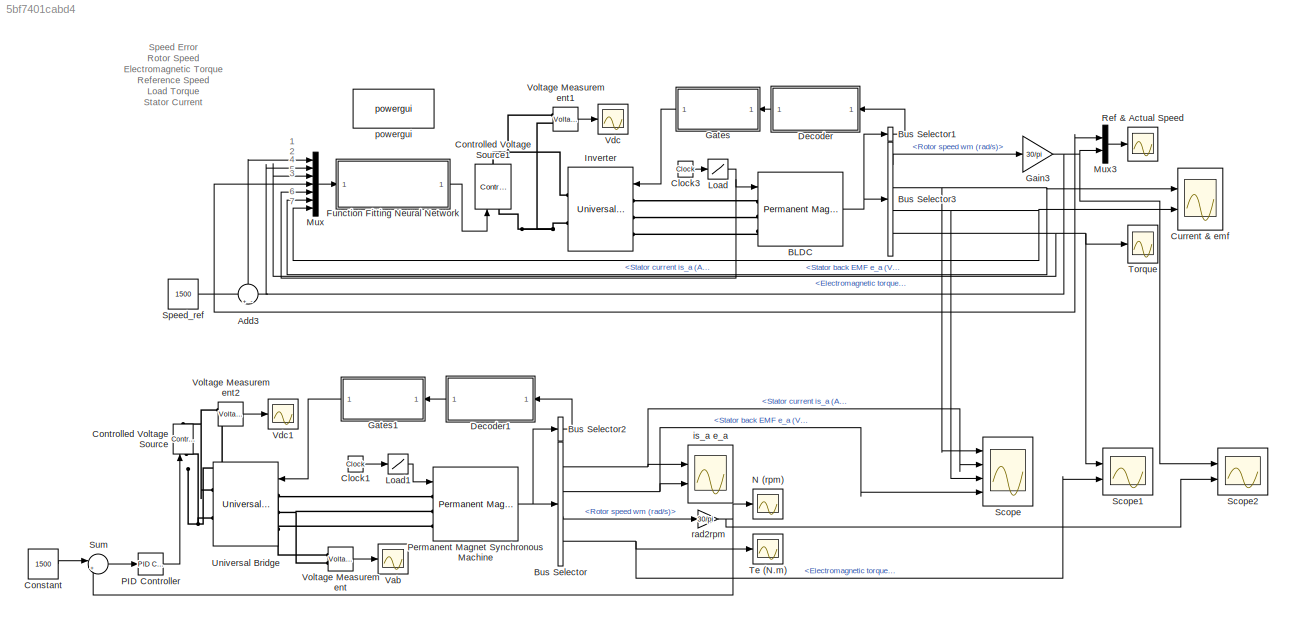
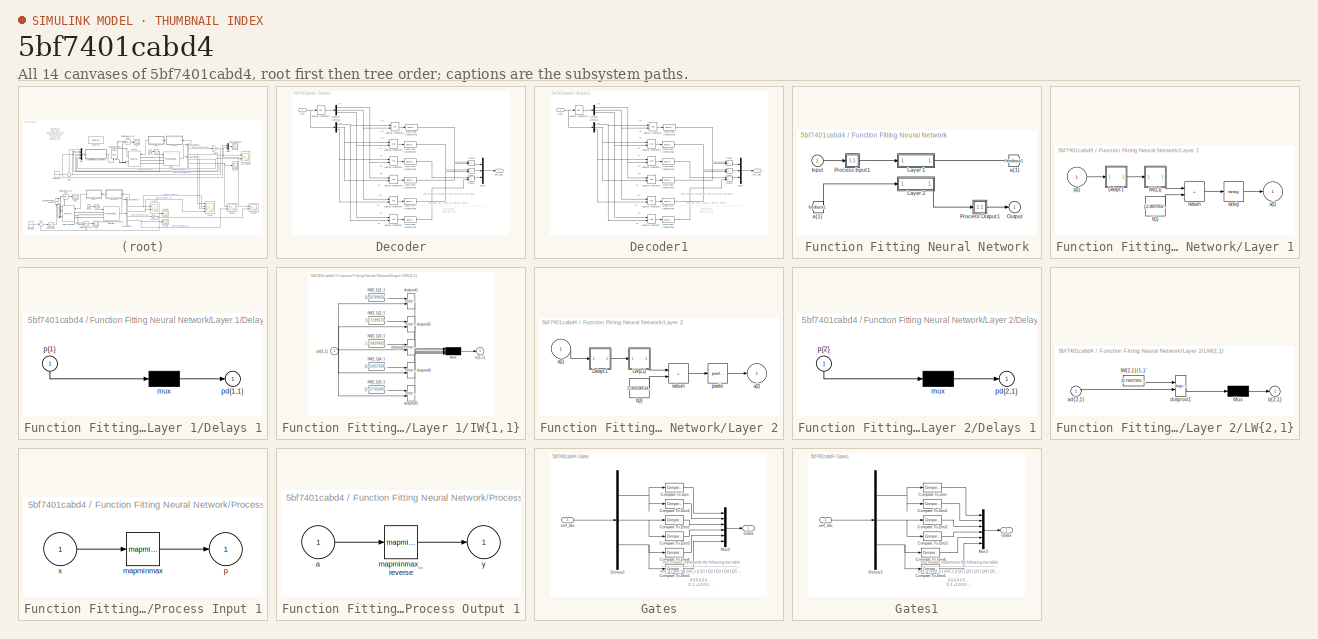
[diagram: thumbnail index - all 14 canvases of the model, root first then tree order]
MODEL slx_5bf7401cabd4
KIND model
CONFIG AbsTol = auto
CONFIG EnableMultiTasking = off
CONFIG FixedStep = auto
CONFIG MaxStep = auto
CONFIG MinStep = auto
CONFIG RelTol = 1e-3
CONFIG SampleTimeConstraint = Unconstrained
CONFIG SolverName = VariableStepAuto
CONFIG StartTime = 0.0
CONFIG StopTime = 5
BLOCK [Sum] Add3
  Inputs = +-
  NameLocation = right
  Ports = [2, 1]
BLOCK [Reference] BLDC  REF=spsPermanentMagnetSynchronousMachineLib/Permanent Magnet
Synchronous Machine
  Ports = [1, 1, 0, 0, 0, 3]
  SourceBlock = spsPermanentMagnetSynchronousMachineLib/Permanent Magnet\nSynchronous Machine
  SourceProductBaseCode = PS
  SourceType = Permanent Magnet Synchronous Machine
BLOCK [BusSelector] Bus Selector
  OutputSignals = Stator current is_a (A),Stator back EMF e_a (V),Rotor speed wm (rad/s),Electromagnetic torque Te (N*m)
  Ports = [1, 4]
BLOCK [BusSelector] Bus Selector1
  OutputAsBus = on
  OutputSignals = Hall effect signal h_a,Hall effect signal h_b,Hall effect signal h_c
  Ports = [1, 1]
BLOCK [BusSelector] Bus Selector2
  OutputAsBus = on
  OutputSignals = Hall effect signal h_a,Hall effect signal h_b,Hall effect signal h_c
  Ports = [1, 1]
BLOCK [BusSelector] Bus Selector3
  OutputSignals = Rotor speed wm (rad/s),Stator current is_a (A),Stator back EMF e_a (V),Electromagnetic torque Te (N*m)
  Ports = [1, 4]
BLOCK [Clock] Clock1
  DisplayTime = on
BLOCK [Clock] Clock3
  DisplayTime = on
BLOCK [Constant] Constant
  Value = 1500
BLOCK [Reference] Controlled Voltage Source  REF=spsControlledVoltageSourceLib/Controlled Voltage Source
  NameLocation = right
  Ports = [1, 0, 0, 0, 0, 1, 1]
  SourceBlock = spsControlledVoltageSourceLib/Controlled Voltage Source
  SourceProductBaseCode = PS
  SourceType = Controlled Voltage Source
BLOCK [Reference] Controlled Voltage Source1  REF=spsControlledVoltageSourceLib/Controlled Voltage Source
  NameLocation = right
  Ports = [1, 0, 0, 0, 0, 1, 1]
  SourceBlock = spsControlledVoltageSourceLib/Controlled Voltage Source
  SourceProductBaseCode = PS
  SourceType = Controlled Voltage Source
BLOCK [Scope] Current & emf
  Floating = off
  NumInputPorts = 2
  Ports = [2]
  ScopeSpecificationString = Simulink.scopes.TimeScopeBlockCfg('CurrentConfiguration', extmgr.ConfigurationSet(extmgr.Configuration('Core','General UI',true,'FigureColor',[1 1 1]),extmgr.Configuration('Core','Source UI',true),extmgr.Configuration('Sources','WiredSimulink',true,'DataLoggingVariableName','ScopeData1','DataLoggingSaveFormat','StructureWithTime','DataLoggingMaxPoints','5000000','DataLoggingLimitDataPoints',true,'...<+2720ch>
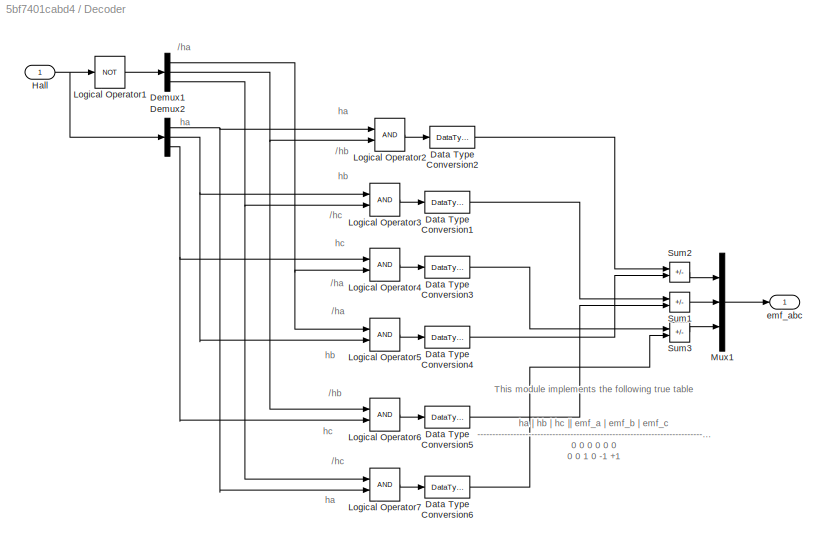
BLOCK [SubSystem] Decoder
  NameLocation = top
  Ports = [1, 1]
  RequestExecContextInheritance = off
BLOCK [DataTypeConversion] Decoder/Data Type Conversion1
  RndMeth = Floor
  SaturateOnIntegerOverflow = off
BLOCK [DataTypeConversion] Decoder/Data Type Conversion2
  RndMeth = Floor
  SaturateOnIntegerOverflow = off
BLOCK [DataTypeConversion] Decoder/Data Type Conversion3
  RndMeth = Floor
  SaturateOnIntegerOverflow = off
BLOCK [DataTypeConversion] Decoder/Data Type Conversion4
  RndMeth = Floor
  SaturateOnIntegerOverflow = off
BLOCK [DataTypeConversion] Decoder/Data Type Conversion5
  RndMeth = Floor
  SaturateOnIntegerOverflow = off
BLOCK [DataTypeConversion] Decoder/Data Type Conversion6
  RndMeth = Floor
  SaturateOnIntegerOverflow = off
BLOCK [Demux] Decoder/Demux1
  Outputs = 3
  Ports = [1, 3]
BLOCK [Demux] Decoder/Demux2
  Outputs = 3
  Ports = [1, 3]
BLOCK [Inport] Decoder/Hall 
BLOCK [Logic] Decoder/Logical Operator1
  AllPortsSameDT = off
  Operator = NOT
  OutDataTypeStr = boolean
  Ports = [1, 1]
BLOCK [Logic] Decoder/Logical Operator2
  AllPortsSameDT = off
  OutDataTypeStr = boolean
  Ports = [2, 1]
BLOCK [Logic] Decoder/Logical Operator3
  AllPortsSameDT = off
  OutDataTypeStr = boolean
  Ports = [2, 1]
BLOCK [Logic] Decoder/Logical Operator4
  AllPortsSameDT = off
  OutDataTypeStr = boolean
  Ports = [2, 1]
BLOCK [Logic] Decoder/Logical Operator5
  AllPortsSameDT = off
  OutDataTypeStr = boolean
  Ports = [2, 1]
BLOCK [Logic] Decoder/Logical Operator6
  AllPortsSameDT = off
  OutDataTypeStr = boolean
  Ports = [2, 1]
BLOCK [Logic] Decoder/Logical Operator7
  AllPortsSameDT = off
  OutDataTypeStr = boolean
  Ports = [2, 1]
BLOCK [Mux] Decoder/Mux1
  DisplayOption = bar
  Inputs = 3
  Ports = [3, 1]
BLOCK [Sum] Decoder/Sum1
  IconShape = rectangular
  Inputs = +-
  OutDataTypeStr = double
  Ports = [2, 1]
BLOCK [Sum] Decoder/Sum2
  IconShape = rectangular
  Inputs = +-
  OutDataTypeStr = double
  Ports = [2, 1]
BLOCK [Sum] Decoder/Sum3
  IconShape = rectangular
  Inputs = +-
  OutDataTypeStr = double
  Ports = [2, 1]
BLOCK [Outport] Decoder/emf_abc
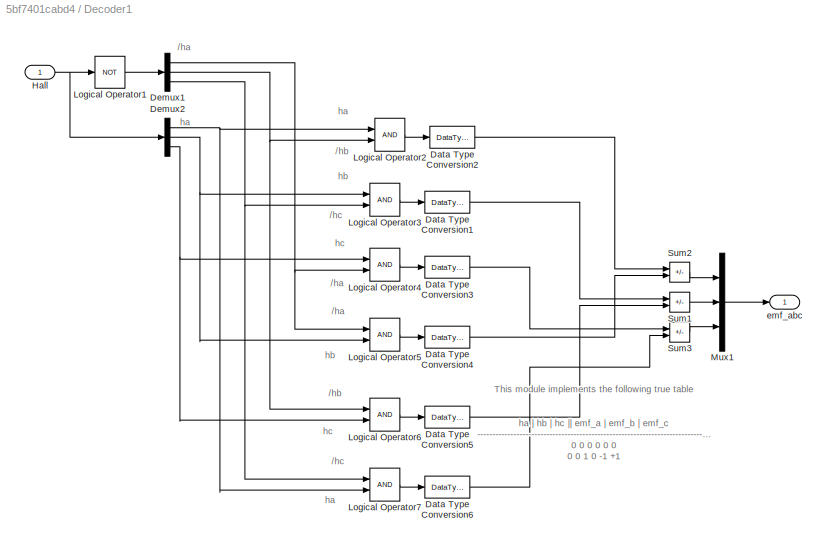
BLOCK [SubSystem] Decoder1
  NameLocation = top
  Ports = [1, 1]
  RequestExecContextInheritance = off
BLOCK [DataTypeConversion] Decoder1/Data Type Conversion1
  RndMeth = Floor
  SaturateOnIntegerOverflow = off
BLOCK [DataTypeConversion] Decoder1/Data Type Conversion2
  RndMeth = Floor
  SaturateOnIntegerOverflow = off
BLOCK [DataTypeConversion] Decoder1/Data Type Conversion3
  RndMeth = Floor
  SaturateOnIntegerOverflow = off
BLOCK [DataTypeConversion] Decoder1/Data Type Conversion4
  RndMeth = Floor
  SaturateOnIntegerOverflow = off
BLOCK [DataTypeConversion] Decoder1/Data Type Conversion5
  RndMeth = Floor
  SaturateOnIntegerOverflow = off
BLOCK [DataTypeConversion] Decoder1/Data Type Conversion6
  RndMeth = Floor
  SaturateOnIntegerOverflow = off
BLOCK [Demux] Decoder1/Demux1
  Outputs = 3
  Ports = [1, 3]
BLOCK [Demux] Decoder1/Demux2
  Outputs = 3
  Ports = [1, 3]
BLOCK [Inport] Decoder1/Hall 
BLOCK [Logic] Decoder1/Logical Operator1
  AllPortsSameDT = off
  Operator = NOT
  OutDataTypeStr = boolean
  Ports = [1, 1]
BLOCK [Logic] Decoder1/Logical Operator2
  AllPortsSameDT = off
  OutDataTypeStr = boolean
  Ports = [2, 1]
BLOCK [Logic] Decoder1/Logical Operator3
  AllPortsSameDT = off
  OutDataTypeStr = boolean
  Ports = [2, 1]
BLOCK [Logic] Decoder1/Logical Operator4
  AllPortsSameDT = off
  OutDataTypeStr = boolean
  Ports = [2, 1]
BLOCK [Logic] Decoder1/Logical Operator5
  AllPortsSameDT = off
  OutDataTypeStr = boolean
  Ports = [2, 1]
BLOCK [Logic] Decoder1/Logical Operator6
  AllPortsSameDT = off
  OutDataTypeStr = boolean
  Ports = [2, 1]
BLOCK [Logic] Decoder1/Logical Operator7
  AllPortsSameDT = off
  OutDataTypeStr = boolean
  Ports = [2, 1]
BLOCK [Mux] Decoder1/Mux1
  DisplayOption = bar
  Inputs = 3
  Ports = [3, 1]
BLOCK [Sum] Decoder1/Sum1
  IconShape = rectangular
  Inputs = +-
  OutDataTypeStr = double
  Ports = [2, 1]
BLOCK [Sum] Decoder1/Sum2
  IconShape = rectangular
  Inputs = +-
  OutDataTypeStr = double
  Ports = [2, 1]
BLOCK [Sum] Decoder1/Sum3
  IconShape = rectangular
  Inputs = +-
  OutDataTypeStr = double
  Ports = [2, 1]
BLOCK [Outport] Decoder1/emf_abc
BLOCK [SubSystem] Function Fitting Neural Network
  Ports = [1, 1]
  RequestExecContextInheritance = off
BLOCK [From] Function Fitting Neural Network/ a{1} 
  GotoTag = feedback1
BLOCK [Inport] Function Fitting Neural Network/Input
  PortDimensions = 7
BLOCK [SubSystem] Function Fitting Neural Network/Layer 1
  Ports = [1, 1]
  RequestExecContextInheritance = off
BLOCK [SubSystem] Function Fitting Neural Network/Layer 1/Delays 1
  Ports = [1, 1]
  RequestExecContextInheritance = off
BLOCK [Mux] Function Fitting Neural Network/Layer 1/Delays 1/mux
  Inputs = 1
  Ports = [1, 1]
BLOCK [Outport] Function Fitting Neural Network/Layer 1/Delays 1/pd{1,1}
BLOCK [Inport] Function Fitting Neural Network/Layer 1/Delays 1/p{1}
  NameLocation = left
  PortDimensions = 7
BLOCK [SubSystem] Function Fitting Neural Network/Layer 1/IW{1,1}
  Ports = [1, 1]
  RequestExecContextInheritance = off
BLOCK [Constant] Function Fitting Neural Network/Layer 1/IW{1,1}/IW{1,1}(1,:)'
  Value = [2.337894561333416998394341135281138122081756591796875;-1.138275165048834747238970521721057593822479248046875;-2.708976472384616140942625861498527228832244873046875;1.1997378105654561419868286975543014705181121826171875;0.76215401248940317646685116415028460323810577392578125;-0.08496744952560462971202781545798643492162227630615234375;0.029457138458494409871679664547627908177673816680908203125]
BLOCK [Constant] Function Fitting Neural Network/Layer 1/IW{1,1}/IW{1,1}(2,:)'
  Value = [-0.71995706069655052150579876979463733732700347900390625;0.46811736253884894676247085953946225345134735107421875;0.64234929453332545445931600625044666230678558349609375;-0.316033724297122564639295205779490061104297637939453125;0.0055395648132617360259732919303132803179323673248291015625;0.005329492584143114865258272772052805521525442600250244140625;-0.001716753068404168079338911745423956745071336...<+18ch>
BLOCK [Constant] Function Fitting Neural Network/Layer 1/IW{1,1}/IW{1,1}(3,:)'
  Value = [-1.0420662066810362222923913577687926590442657470703125;0.56282547219683654038391296126064844429492950439453125;4.467365256406669260513808694668114185333251953125;-0.481868987729792641605541803073720075190067291259765625;-1.2950824265775244814591360409394837915897369384765625;0.010248739741031999417320008660681196488440036773681640625;0.00503736398570008188368962720460331183858215808868408203125]
BLOCK [Constant] Function Fitting Neural Network/Layer 1/IW{1,1}/IW{1,1}(4,:)'
  Value = [1.2245769624272770936812548825400881469249725341796875;-0.2444389209861232148401910535540082491934299468994140625;-0.80081415294049718145430460936040617525577545166015625;0.265452319101027234271583665758953429758548736572265625;0.0246516649897130235569164824482868425548076629638671875;-0.004517158937531359254313745310582817182876169681549072265625;0.00173242131606761635455316028497918523498810827...<+16ch>
BLOCK [Constant] Function Fitting Neural Network/Layer 1/IW{1,1}/IW{1,1}(5,:)'
  Value = [1.577454053812956669133882314781658351421356201171875;0.25795104189936080008038743471843190491199493408203125;-2.00072784584963248022404513903893530368804931640625;-0.38010773697330890730228247775812633335590362548828125;0.3549179672418996123184342650347389280796051025390625;-0.00505267159807597752985142136594731709919869899749755859375;-0.000588342044040139860831828411136257273028604686260223388...<+7ch>
BLOCK [Mux] Function Fitting Neural Network/Layer 1/IW{1,1}/Mux
  Inputs = 5
  Ports = [5, 1]
BLOCK [Reference] Function Fitting Neural Network/Layer 1/IW{1,1}/dotprod1  REF=neural/Weight Functions/dotprod
  Ports = [2, 1]
  SourceBlock = neural/Weight Functions/dotprod
  SourceProductBaseCode = NN
  SourceType = DOTPROD
BLOCK [Reference] Function Fitting Neural Network/Layer 1/IW{1,1}/dotprod2  REF=neural/Weight Functions/dotprod
  Ports = [2, 1]
  SourceBlock = neural/Weight Functions/dotprod
  SourceProductBaseCode = NN
  SourceType = DOTPROD
BLOCK [Reference] Function Fitting Neural Network/Layer 1/IW{1,1}/dotprod3  REF=neural/Weight Functions/dotprod
  Ports = [2, 1]
  SourceBlock = neural/Weight Functions/dotprod
  SourceProductBaseCode = NN
  SourceType = DOTPROD
BLOCK [Reference] Function Fitting Neural Network/Layer 1/IW{1,1}/dotprod4  REF=neural/Weight Functions/dotprod
  Ports = [2, 1]
  SourceBlock = neural/Weight Functions/dotprod
  SourceProductBaseCode = NN
  SourceType = DOTPROD
BLOCK [Reference] Function Fitting Neural Network/Layer 1/IW{1,1}/dotprod5  REF=neural/Weight Functions/dotprod
  Ports = [2, 1]
  SourceBlock = neural/Weight Functions/dotprod
  SourceProductBaseCode = NN
  SourceType = DOTPROD
BLOCK [Outport] Function Fitting Neural Network/Layer 1/IW{1,1}/iz{1,1}
BLOCK [Inport] Function Fitting Neural Network/Layer 1/IW{1,1}/pd{1,1}
  PortDimensions = 7
BLOCK [Outport] Function Fitting Neural Network/Layer 1/a{1}
  InitialOutput = [0;0;0;0;0]
BLOCK [Constant] Function Fitting Neural Network/Layer 1/b{1}
  Value = [-2.389795992276143810073563145124353468418121337890625;-1.0584243341651333736308515653945505619049072265625;1.3537090056499032630910051011596806347370147705078125;0.8399197510456339887952026401762850582599639892578125;-0.175703703903877739289640658171265386044979095458984375]
BLOCK [Sum] Function Fitting Neural Network/Layer 1/netsum
  IconShape = rectangular
  InputSameDT = on
  Inputs = 2
  OutDataTypeStr = Inherit: Same as first input
  Ports = [2, 1]
  SaturateOnIntegerOverflow = on
BLOCK [Inport] Function Fitting Neural Network/Layer 1/p{1}
  PortDimensions = 7
BLOCK [Reference] Function Fitting Neural Network/Layer 1/tansig  REF=neural/Transfer Functions/tansig
  Ports = [1, 1]
  SourceBlock = neural/Transfer Functions/tansig
  SourceProductBaseCode = NN
  SourceType = TANSIG
BLOCK [SubSystem] Function Fitting Neural Network/Layer 2
  Ports = [1, 1]
  RequestExecContextInheritance = off
BLOCK [SubSystem] Function Fitting Neural Network/Layer 2/Delays 1
  Ports = [1, 1]
  RequestExecContextInheritance = off
BLOCK [Mux] Function Fitting Neural Network/Layer 2/Delays 1/mux
  Inputs = 1
  Ports = [1, 1]
BLOCK [Outport] Function Fitting Neural Network/Layer 2/Delays 1/pd{2,1}
BLOCK [Inport] Function Fitting Neural Network/Layer 2/Delays 1/p{2}
  NameLocation = left
  PortDimensions = 5
BLOCK [SubSystem] Function Fitting Neural Network/Layer 2/LW{2,1}
  Ports = [1, 1]
  RequestExecContextInheritance = off
BLOCK [Constant] Function Fitting Neural Network/Layer 2/LW{2,1}/IW{2,1}(1,:)'
  Value = [0.79637905648874063313513715911540202796459197998046875;5.2322438534116297859100086498074233531951904296875;-0.405938067298728111342853708265465684235095977783203125;3.5615619760899033252599110710434615612030029296875;-1.302572531856612148004614937235601246356964111328125]
BLOCK [Mux] Function Fitting Neural Network/Layer 2/LW{2,1}/Mux
  Inputs = 1
  Ports = [1, 1]
BLOCK [Inport] Function Fitting Neural Network/Layer 2/LW{2,1}/ad{2,1}
  PortDimensions = 5
BLOCK [Reference] Function Fitting Neural Network/Layer 2/LW{2,1}/dotprod1  REF=neural/Weight Functions/dotprod
  Ports = [2, 1]
  SourceBlock = neural/Weight Functions/dotprod
  SourceProductBaseCode = NN
  SourceType = DOTPROD
BLOCK [Outport] Function Fitting Neural Network/Layer 2/LW{2,1}/lz{2,1}
BLOCK [Inport] Function Fitting Neural Network/Layer 2/a{1} 
  PortDimensions = 5
BLOCK [Outport] Function Fitting Neural Network/Layer 2/a{2}
  InitialOutput = 0
BLOCK [Constant] Function Fitting Neural Network/Layer 2/b{2}
  Value = 2.583238514645473049569091017474420368671417236328125
BLOCK [Sum] Function Fitting Neural Network/Layer 2/netsum
  IconShape = rectangular
  InputSameDT = on
  Inputs = 2
  OutDataTypeStr = Inherit: Same as first input
  Ports = [2, 1]
  SaturateOnIntegerOverflow = on
BLOCK [Reference] Function Fitting Neural Network/Layer 2/purelin  REF=neural/Transfer Functions/purelin
  Ports = [1, 1]
  SourceBlock = neural/Transfer Functions/purelin
  SourceProductBaseCode = NN
  SourceType = PURELIN
BLOCK [Outport] Function Fitting Neural Network/Output
  InitialOutput = 0
BLOCK [SubSystem] Function Fitting Neural Network/Process Input 1
  Ports = [1, 1]
  RequestExecContextInheritance = off
BLOCK [Reference] Function Fitting Neural Network/Process Input 1/mapminmax  REF=neural/Processing Functions/mapminmax
  Ports = [1, 1]
  SourceBlock = neural/Processing Functions/mapminmax
  SourceProductBaseCode = NN
  SourceType = MAPMINMAX Preprocess
BLOCK [Outport] Function Fitting Neural Network/Process Input 1/p
  PortDimensions = 7
BLOCK [Inport] Function Fitting Neural Network/Process Input 1/x
  PortDimensions = 7
BLOCK [SubSystem] Function Fitting Neural Network/Process Output 1
  Ports = [1, 1]
  RequestExecContextInheritance = off
BLOCK [Inport] Function Fitting Neural Network/Process Output 1/a
  PortDimensions = 1
BLOCK [Reference] Function Fitting Neural Network/Process Output 1/mapminmax_reverse  REF=neural/Processing Functions/mapminmax_reverse
  Ports = [1, 1]
  SourceBlock = neural/Processing Functions/mapminmax_reverse
  SourceProductBaseCode = NN
  SourceType = MAPMINMAX Reverse Process
BLOCK [Outport] Function Fitting Neural Network/Process Output 1/y
  PortDimensions = 1
BLOCK [Goto] Function Fitting Neural Network/a{1}
  GotoTag = feedback1
BLOCK [Gain] Gain3
  Gain = 30/pi
BLOCK [SubSystem] Gates
  NameLocation = top
  Ports = [1, 1]
  RequestExecContextInheritance = off
BLOCK [Reference] Gates/Compare To Zero  REF=simulink/Logic and Bit
Operations/Compare
To Zero
  Ports = [1, 1]
  SourceBlock = simulink/Logic and Bit\nOperations/Compare\nTo Zero
  SourceProductBaseCode = SL
  SourceType = Compare To Zero
BLOCK [Reference] Gates/Compare To Zero1  REF=simulink/Logic and Bit
Operations/Compare
To Zero
  Ports = [1, 1]
  SourceBlock = simulink/Logic and Bit\nOperations/Compare\nTo Zero
  SourceProductBaseCode = SL
  SourceType = Compare To Zero
BLOCK [Reference] Gates/Compare To Zero2  REF=simulink/Logic and Bit
Operations/Compare
To Zero
  Ports = [1, 1]
  SourceBlock = simulink/Logic and Bit\nOperations/Compare\nTo Zero
  SourceProductBaseCode = SL
  SourceType = Compare To Zero
BLOCK [Reference] Gates/Compare To Zero3  REF=simulink/Logic and Bit
Operations/Compare
To Zero
  Ports = [1, 1]
  SourceBlock = simulink/Logic and Bit\nOperations/Compare\nTo Zero
  SourceProductBaseCode = SL
  SourceType = Compare To Zero
BLOCK [Reference] Gates/Compare To Zero4  REF=simulink/Logic and Bit
Operations/Compare
To Zero
  Ports = [1, 1]
  SourceBlock = simulink/Logic and Bit\nOperations/Compare\nTo Zero
  SourceProductBaseCode = SL
  SourceType = Compare To Zero
BLOCK [Reference] Gates/Compare To Zero5  REF=simulink/Logic and Bit
Operations/Compare
To Zero
  Ports = [1, 1]
  SourceBlock = simulink/Logic and Bit\nOperations/Compare\nTo Zero
  SourceProductBaseCode = SL
  SourceType = Compare To Zero
BLOCK [Demux] Gates/Demux2
  Outputs = 3
  Ports = [1, 3]
BLOCK [Outport] Gates/Gates
BLOCK [Mux] Gates/Mux3
  DisplayOption = bar
  Inputs = 6
  Ports = [6, 1]
BLOCK [Inport] Gates/emf_abc 
BLOCK [SubSystem] Gates1
  NameLocation = top
  Ports = [1, 1]
  RequestExecContextInheritance = off
BLOCK [Reference] Gates1/Compare To Zero  REF=simulink/Logic and Bit
Operations/Compare
To Zero
  Ports = [1, 1]
  SourceBlock = simulink/Logic and Bit\nOperations/Compare\nTo Zero
  SourceProductBaseCode = SL
  SourceType = Compare To Zero
BLOCK [Reference] Gates1/Compare To Zero1  REF=simulink/Logic and Bit
Operations/Compare
To Zero
  Ports = [1, 1]
  SourceBlock = simulink/Logic and Bit\nOperations/Compare\nTo Zero
  SourceProductBaseCode = SL
  SourceType = Compare To Zero
BLOCK [Reference] Gates1/Compare To Zero2  REF=simulink/Logic and Bit
Operations/Compare
To Zero
  Ports = [1, 1]
  SourceBlock = simulink/Logic and Bit\nOperations/Compare\nTo Zero
  SourceProductBaseCode = SL
  SourceType = Compare To Zero
BLOCK [Reference] Gates1/Compare To Zero3  REF=simulink/Logic and Bit
Operations/Compare
To Zero
  Ports = [1, 1]
  SourceBlock = simulink/Logic and Bit\nOperations/Compare\nTo Zero
  SourceProductBaseCode = SL
  SourceType = Compare To Zero
BLOCK [Reference] Gates1/Compare To Zero4  REF=simulink/Logic and Bit
Operations/Compare
To Zero
  Ports = [1, 1]
  SourceBlock = simulink/Logic and Bit\nOperations/Compare\nTo Zero
  SourceProductBaseCode = SL
  SourceType = Compare To Zero
BLOCK [Reference] Gates1/Compare To Zero5  REF=simulink/Logic and Bit
Operations/Compare
To Zero
  Ports = [1, 1]
  SourceBlock = simulink/Logic and Bit\nOperations/Compare\nTo Zero
  SourceProductBaseCode = SL
  SourceType = Compare To Zero
BLOCK [Demux] Gates1/Demux2
  Outputs = 3
  Ports = [1, 3]
BLOCK [Outport] Gates1/Gates
BLOCK [Mux] Gates1/Mux3
  DisplayOption = bar
  Inputs = 6
  Ports = [6, 1]
BLOCK [Inport] Gates1/emf_abc 
BLOCK [Reference] Inverter  REF=spsUniversalBridgeLib/Universal Bridge
  Ports = [1, 0, 0, 0, 0, 3, 2]
  SourceBlock = spsUniversalBridgeLib/Universal Bridge
  SourceProductBaseCode = PS
  SourceType = Universal Bridge
BLOCK [Lookup] Load
  InputValues = [0 1 2 3 4 5]
  LookUpMeth = Use Input Below
  SaturateOnIntegerOverflow = off
  Table = [0 3.125 6.25 9.375 12.5 0]
BLOCK [Lookup] Load1
  InputValues = [0 1 2 3 4 5]
  LookUpMeth = Use Input Below
  SaturateOnIntegerOverflow = off
  Table = [0 3.125 6.25 9.375 12.5 0]
BLOCK [Mux] Mux
  DisplayOption = bar
  Inputs = 7
  Ports = [7, 1]
BLOCK [Mux] Mux3
  DisplayOption = bar
  Inputs = 2
  Ports = [2, 1]
BLOCK [Scope] N (rpm)
  Floating = off
  NameLocation = top
  NumInputPorts = 1
  Ports = [1]
  ScopeSpecificationString = Simulink.scopes.TimeScopeBlockCfg('CurrentConfiguration', extmgr.ConfigurationSet(extmgr.Configuration('Core','General UI',true,'FigureColor',[1 1 1]),extmgr.Configuration('Core','Source UI',true),extmgr.Configuration('Sources','WiredSimulink',true,'DataLoggingVariableName','ScopeData4','DataLoggingSaveFormat','StructureWithTime','DataLoggingDecimation','1','DataLoggingDecimateData',true),extmgr.C...<+2979ch>
BLOCK [Reference] PID Controller  REF=pid_lib/PID Controller
  Ports = [1, 1]
  SourceBlock = pid_lib/PID Controller
  SourceProductBaseCode = SL
  SourceType = PID 1dof
BLOCK [Reference] Permanent Magnet Synchronous Machine  REF=spsPermanentMagnetSynchronousMachineLib/Permanent Magnet
Synchronous Machine
  Ports = [1, 1, 0, 0, 0, 3]
  SourceBlock = spsPermanentMagnetSynchronousMachineLib/Permanent Magnet\nSynchronous Machine
  SourceProductBaseCode = PS
  SourceType = Permanent Magnet Synchronous Machine
BLOCK [Scope] Ref & Actual Speed
  Floating = off
  NumInputPorts = 1
  Ports = [1]
  ScopeSpecificationString = Simulink.scopes.TimeScopeBlockCfg('CurrentConfiguration', extmgr.ConfigurationSet(extmgr.Configuration('Core','General UI',true,'FigureColor',[1 1 1],'DisplayFullSourceName',true),extmgr.Configuration('Core','Source UI',true),extmgr.Configuration('Sources','WiredSimulink',true,'DataLoggingVariableName','ScopeData2','DataLoggingSaveFormat','StructureWithTime','DataLoggingMaxPoints','5000000','DataL...<+2226ch>
BLOCK [Scope] Scope
  Floating = off
  NumInputPorts = 4
  Ports = [4]
  ScopeSpecificationString = Simulink.scopes.TimeScopeBlockCfg('CurrentConfiguration', extmgr.ConfigurationSet(extmgr.Configuration('Core','General UI',true,'FigureColor',[1 1 1]),extmgr.Configuration('Core','Source UI',true),extmgr.Configuration('Sources','WiredSimulink',true,'DataLoggingVariableName','ScopeData8'),extmgr.Configuration('Visuals','Time Domain',true,'SerializedDisplays',{struct('MinYLimReal','-15','MaxYLimReal...<+4350ch>
BLOCK [Scope] Scope1
  Floating = off
  NumInputPorts = 2
  Ports = [2]
  ScopeSpecificationString = Simulink.scopes.TimeScopeBlockCfg('CurrentConfiguration', extmgr.ConfigurationSet(extmgr.Configuration('Core','General UI',true,'FigureColor',[1 1 1]),extmgr.Configuration('Core','Source UI',true),extmgr.Configuration('Sources','WiredSimulink',true,'DataLoggingVariableName','ScopeData9'),extmgr.Configuration('Visuals','Time Domain',true,'SerializedDisplays',{struct('MinYLimReal','-10','MaxYLimReal...<+2428ch>
BLOCK [Scope] Scope2
  Floating = off
  NumInputPorts = 2
  Ports = [2]
  ScopeSpecificationString = Simulink.scopes.TimeScopeBlockCfg('CurrentConfiguration', extmgr.ConfigurationSet(extmgr.Configuration('Core','General UI',true,'FigureColor',[1 1 1]),extmgr.Configuration('Core','Source UI',true),extmgr.Configuration('Sources','WiredSimulink',true,'DataLoggingVariableName','ScopeData11'),extmgr.Configuration('Visuals','Time Domain',true,'SerializedDisplays',{struct('MinYLimReal','0','MaxYLimReal'...<+2369ch>
BLOCK [Constant] Speed_ref
  Value = 1500
BLOCK [Sum] Sum
  Inputs = |+-
  Ports = [2, 1]
BLOCK [Scope] Te (N.m)
  Floating = off
  NumInputPorts = 1
  Ports = [1]
  ScopeSpecificationString = Simulink.scopes.TimeScopeBlockCfg('CurrentConfiguration', extmgr.ConfigurationSet(extmgr.Configuration('Core','General UI',true,'FigureColor',[1 1 1]),extmgr.Configuration('Core','Source UI',true),extmgr.Configuration('Sources','WiredSimulink',true,'DataLoggingVariableName','ScopeData5','DataLoggingSaveFormat','StructureWithTime','DataLoggingDecimation','1','DataLoggingDecimateData',true),extmgr.C...<+3026ch>
BLOCK [Scope] Torque
  Floating = off
  NumInputPorts = 1
  Ports = [1]
  ScopeSpecificationString = Simulink.scopes.TimeScopeBlockCfg('CurrentConfiguration', extmgr.ConfigurationSet(extmgr.Configuration('Core','General UI',true,'FigureColor',[1 1 1]),extmgr.Configuration('Core','Source UI',true),extmgr.Configuration('Sources','WiredSimulink',true,'DataLoggingVariableName','ScopeData3'),extmgr.Configuration('Visuals','Time Domain',true,'SerializedDisplays',{struct('MinYLimReal','-10','MaxYLimReal...<+1709ch>
BLOCK [Reference] Universal Bridge  REF=spsUniversalBridgeLib/Universal Bridge
  Ports = [1, 0, 0, 0, 0, 3, 2]
  SourceBlock = spsUniversalBridgeLib/Universal Bridge
  SourceProductBaseCode = PS
  SourceType = Universal Bridge
BLOCK [Scope] Vab
  Floating = off
  NumInputPorts = 1
  Ports = [1]
  ScopeSpecificationString = Simulink.scopes.TimeScopeBlockCfg('CurrentConfiguration', extmgr.ConfigurationSet(extmgr.Configuration('Core','General UI',true,'FigureColor',[1 1 1]),extmgr.Configuration('Core','Source UI',true),extmgr.Configuration('Sources','WiredSimulink',true,'DataLoggingSaveFormat','Structure','DataLoggingDecimation','1','DataLoggingDecimateData',true,'DataLoggingVariableName','ScopeData6'),extmgr.Configura...<+2922ch>
BLOCK [Scope] Vdc
  Floating = off
  NumInputPorts = 1
  Ports = [1]
  ScopeSpecificationString = Simulink.scopes.TimeScopeBlockCfg('CurrentConfiguration', extmgr.ConfigurationSet(extmgr.Configuration('Core','General UI',true,'FigureColor',[1 1 1]),extmgr.Configuration('Core','Source UI',true),extmgr.Configuration('Sources','WiredSimulink',true,'DataLoggingSaveFormat','Structure','DataLoggingDecimation','1','DataLoggingDecimateData',true),extmgr.Configuration('Visuals','Time Domain',true,'Seri...<+1914ch>
BLOCK [Scope] Vdc1
  Floating = off
  NumInputPorts = 1
  Ports = [1]
  ScopeSpecificationString = Simulink.scopes.TimeScopeBlockCfg('CurrentConfiguration', extmgr.ConfigurationSet(extmgr.Configuration('Core','General UI',true,'FigureColor',[1 1 1]),extmgr.Configuration('Core','Source UI',true),extmgr.Configuration('Sources','WiredSimulink',true,'DataLoggingVariableName','ScopeData7','DataLoggingSaveFormat','Structure','DataLoggingDecimation','1','DataLoggingDecimateData',true),extmgr.Configura...<+1958ch>
BLOCK [Reference] Voltage Measurement  REF=spsVoltageMeasurementLib/Voltage Measurement
  Ports = [0, 1, 0, 0, 0, 2]
  SourceBlock = spsVoltageMeasurementLib/Voltage Measurement
  SourceProductBaseCode = PS
  SourceType = Voltage Measurement
BLOCK [Reference] Voltage Measurement1  REF=spsVoltageMeasurementLib/Voltage Measurement
  Ports = [0, 1, 0, 0, 0, 2]
  SourceBlock = spsVoltageMeasurementLib/Voltage Measurement
  SourceProductBaseCode = PS
  SourceType = Voltage Measurement
BLOCK [Reference] Voltage Measurement2  REF=spsVoltageMeasurementLib/Voltage Measurement
  Ports = [0, 1, 0, 0, 0, 2]
  SourceBlock = spsVoltageMeasurementLib/Voltage Measurement
  SourceProductBaseCode = PS
  SourceType = Voltage Measurement
BLOCK [Scope] is_a e_a
  Floating = off
  NameLocation = top
  NumInputPorts = 2
  Ports = [2]
  ScopeSpecificationString = Simulink.scopes.TimeScopeBlockCfg('CurrentConfiguration', extmgr.ConfigurationSet(extmgr.Configuration('Core','General UI',true,'FigureColor',[1 1 1]),extmgr.Configuration('Core','Source UI',true),extmgr.Configuration('Sources','WiredSimulink',true,'DataLoggingVariableName','ScopeData10','DataLoggingSaveFormat','StructureWithTime','DataLoggingDecimation','1','DataLoggingDecimateData',true),extmgr....<+4120ch>
BLOCK [Reference] powergui  REF=spspowerguiLib/powergui
  Ports = []
  Priority = 1
  SourceBlock = spspowerguiLib/powergui
  SourceProductBaseCode = PS
  SourceType = PSB option menu block
BLOCK [Gain] rad2rpm
  Gain = 30/pi
ANNOTATION (root): Speed Error Rotor Speed Electromagnetic Torque Reference Speed Load Torque Stator Current Back EMF
ANNOTATION (root): 1
ANNOTATION (root): 2
ANNOTATION (root): 3
ANNOTATION (root): 4
ANNOTATION (root): 5
ANNOTATION (root): 6
ANNOTATION (root): 7
ANNOTATION Decoder: /ha
ANNOTATION Decoder: /hb
ANNOTATION Decoder: /hc
ANNOTATION Decoder: This module implements the following true table ha | hb | hc || emf_a | emf_b | emf_c -------------------------------------------------------------------------------- 0 0 0 0 0 0 0 0 1 0 -1 +1 0 1 0 -1 +1 0 0 1 1 -1 0 +1 1 0 0 +1 0 -1 1 0 1 +1 -1 0 1 1 0 0 +1 -1 1 1 1 0 0 0
ANNOTATION Decoder: ha
ANNOTATION Decoder: hb
ANNOTATION Decoder: hc
ANNOTATION Decoder1: /ha
ANNOTATION Decoder1: /hb
ANNOTATION Decoder1: /hc
ANNOTATION Decoder1: This module implements the following true table ha | hb | hc || emf_a | emf_b | emf_c -------------------------------------------------------------------------------- 0 0 0 0 0 0 0 0 1 0 -1 +1 0 1 0 -1 +1 0 0 1 1 -1 0 +1 1 0 0 +1 0 -1 1 0 1 +1 -1 0 1 1 0 0 +1 -1 1 1 1 0 0 0
ANNOTATION Decoder1: ha
ANNOTATION Decoder1: hb
ANNOTATION Decoder1: hc
ANNOTATION Gates: This module implements the following true table emf_a | emf_b | emf_c || Q1 | Q2 | Q3 | Q4 | Q5 | Q6 ------------------------------------------------------------------------------------------------------------------ 0 0 0 0 0 0 0 0 0 0 -1 +1 0 0 0 1 1 0 -1 +1 0 0 1 1 0 0 0 -1 0 +1 0 1 0 0 1 0 +1 0 -1 1 0 0 0 0 1 +1 -1 0 1 0 0 1 0 0 0 +1 -1 0 0 1 0 0 1 0 0 0 0 0 0 0 0 0
ANNOTATION Gates1: This module implements the following true table emf_a | emf_b | emf_c || Q1 | Q2 | Q3 | Q4 | Q5 | Q6 ------------------------------------------------------------------------------------------------------------------ 0 0 0 0 0 0 0 0 0 0 -1 +1 0 0 0 1 1 0 -1 +1 0 0 1 1 0 0 0 -1 0 +1 0 1 0 0 1 0 +1 0 -1 1 0 0 0 0 1 +1 -1 0 1 0 0 1 0 0 0 +1 -1 0 0 1 0 0 1 0 0 0 0 0 0 0 0 0
LINE Add3:1 -> Mux:1
NET BLDC:1 -> Bus Selector1:1, Bus Selector3:1
LINE Bus Selector1:1 -> Decoder:1
LINE Bus Selector2:1 -> Decoder1:1
LINE Bus Selector3:1 -> Gain3:1
NET Bus Selector3:2 -> Current & emf:1, Mux:6, Scope:1
NET Bus Selector3:3 -> Current & emf:2, Mux:7, Scope:3
NET Bus Selector3:4 -> Mux:3, Scope1:1, Torque:1
NET Bus Selector:1 -> Scope:2, is_a e_a:1
NET Bus Selector:2 -> Scope:4, is_a e_a:2
LINE Bus Selector:3 -> rad2rpm:1
NET Bus Selector:4 -> Scope1:2, Te (N.m):1
LINE Clock1:1 -> Load1:1
LINE Clock3:1 -> Load:1
LINE Constant:1 -> Sum:1
LINE Decoder/Data Type Conversion1:1 -> Decoder/Sum1:1
LINE Decoder/Data Type Conversion2:1 -> Decoder/Sum2:1
LINE Decoder/Data Type Conversion3:1 -> Decoder/Sum3:1
LINE Decoder/Data Type Conversion4:1 -> Decoder/Sum2:2
LINE Decoder/Data Type Conversion5:1 -> Decoder/Sum1:2
LINE Decoder/Data Type Conversion6:1 -> Decoder/Sum3:2
NET Decoder/Demux1:1 -> Decoder/Logical Operator4:2, Decoder/Logical Operator5:1
NET Decoder/Demux1:2 -> Decoder/Logical Operator2:2, Decoder/Logical Operator6:1
NET Decoder/Demux1:3 -> Decoder/Logical Operator3:2, Decoder/Logical Operator7:1
NET Decoder/Demux2:1 -> Decoder/Logical Operator2:1, Decoder/Logical Operator7:2
NET Decoder/Demux2:2 -> Decoder/Logical Operator3:1, Decoder/Logical Operator5:2
NET Decoder/Demux2:3 -> Decoder/Logical Operator4:1, Decoder/Logical Operator6:2
NET Decoder/Hall :1 -> Decoder/Demux2:1, Decoder/Logical Operator1:1
LINE Decoder/Logical Operator1:1 -> Decoder/Demux1:1
LINE Decoder/Logical Operator2:1 -> Decoder/Data Type Conversion2:1
LINE Decoder/Logical Operator3:1 -> Decoder/Data Type Conversion1:1
LINE Decoder/Logical Operator4:1 -> Decoder/Data Type Conversion3:1
LINE Decoder/Logical Operator5:1 -> Decoder/Data Type Conversion4:1
LINE Decoder/Logical Operator6:1 -> Decoder/Data Type Conversion5:1
LINE Decoder/Logical Operator7:1 -> Decoder/Data Type Conversion6:1
LINE Decoder/Mux1:1 -> Decoder/emf_abc:1
LINE Decoder/Sum1:1 -> Decoder/Mux1:2
LINE Decoder/Sum2:1 -> Decoder/Mux1:1
LINE Decoder/Sum3:1 -> Decoder/Mux1:3
LINE Decoder1/Data Type Conversion1:1 -> Decoder1/Sum1:1
LINE Decoder1/Data Type Conversion2:1 -> Decoder1/Sum2:1
LINE Decoder1/Data Type Conversion3:1 -> Decoder1/Sum3:1
LINE Decoder1/Data Type Conversion4:1 -> Decoder1/Sum2:2
LINE Decoder1/Data Type Conversion5:1 -> Decoder1/Sum1:2
LINE Decoder1/Data Type Conversion6:1 -> Decoder1/Sum3:2
NET Decoder1/Demux1:1 -> Decoder1/Logical Operator4:2, Decoder1/Logical Operator5:1
NET Decoder1/Demux1:2 -> Decoder1/Logical Operator2:2, Decoder1/Logical Operator6:1
NET Decoder1/Demux1:3 -> Decoder1/Logical Operator3:2, Decoder1/Logical Operator7:1
NET Decoder1/Demux2:1 -> Decoder1/Logical Operator2:1, Decoder1/Logical Operator7:2
NET Decoder1/Demux2:2 -> Decoder1/Logical Operator3:1, Decoder1/Logical Operator5:2
NET Decoder1/Demux2:3 -> Decoder1/Logical Operator4:1, Decoder1/Logical Operator6:2
NET Decoder1/Hall :1 -> Decoder1/Demux2:1, Decoder1/Logical Operator1:1
LINE Decoder1/Logical Operator1:1 -> Decoder1/Demux1:1
LINE Decoder1/Logical Operator2:1 -> Decoder1/Data Type Conversion2:1
LINE Decoder1/Logical Operator3:1 -> Decoder1/Data Type Conversion1:1
LINE Decoder1/Logical Operator4:1 -> Decoder1/Data Type Conversion3:1
LINE Decoder1/Logical Operator5:1 -> Decoder1/Data Type Conversion4:1
LINE Decoder1/Logical Operator6:1 -> Decoder1/Data Type Conversion5:1
LINE Decoder1/Logical Operator7:1 -> Decoder1/Data Type Conversion6:1
LINE Decoder1/Mux1:1 -> Decoder1/emf_abc:1
LINE Decoder1/Sum1:1 -> Decoder1/Mux1:2
LINE Decoder1/Sum2:1 -> Decoder1/Mux1:1
LINE Decoder1/Sum3:1 -> Decoder1/Mux1:3
LINE Decoder1:1 -> Gates1:1
LINE Decoder:1 -> Gates:1
LINE Function Fitting Neural Network/ a{1} :1 -> Function Fitting Neural Network/Layer 2:1
LINE Function Fitting Neural Network/Input:1 -> Function Fitting Neural Network/Process Input 1:1
LINE Function Fitting Neural Network/Layer 1/Delays 1/mux:1 -> Function Fitting Neural Network/Layer 1/Delays 1/pd{1,1}:1
LINE Function Fitting Neural Network/Layer 1/Delays 1/p{1}:1 -> Function Fitting Neural Network/Layer 1/Delays 1/mux:1
LINE Function Fitting Neural Network/Layer 1/Delays 1:1 -> Function Fitting Neural Network/Layer 1/IW{1,1}:1
LINE Function Fitting Neural Network/Layer 1/IW{1,1}/IW{1,1}(1,:)':1 -> Function Fitting Neural Network/Layer 1/IW{1,1}/dotprod1:1
LINE Function Fitting Neural Network/Layer 1/IW{1,1}/IW{1,1}(2,:)':1 -> Function Fitting Neural Network/Layer 1/IW{1,1}/dotprod2:1
LINE Function Fitting Neural Network/Layer 1/IW{1,1}/IW{1,1}(3,:)':1 -> Function Fitting Neural Network/Layer 1/IW{1,1}/dotprod3:1
LINE Function Fitting Neural Network/Layer 1/IW{1,1}/IW{1,1}(4,:)':1 -> Function Fitting Neural Network/Layer 1/IW{1,1}/dotprod4:1
LINE Function Fitting Neural Network/Layer 1/IW{1,1}/IW{1,1}(5,:)':1 -> Function Fitting Neural Network/Layer 1/IW{1,1}/dotprod5:1
LINE Function Fitting Neural Network/Layer 1/IW{1,1}/Mux:1 -> Function Fitting Neural Network/Layer 1/IW{1,1}/iz{1,1}:1
LINE Function Fitting Neural Network/Layer 1/IW{1,1}/dotprod1:1 -> Function Fitting Neural Network/Layer 1/IW{1,1}/Mux:1
LINE Function Fitting Neural Network/Layer 1/IW{1,1}/dotprod2:1 -> Function Fitting Neural Network/Layer 1/IW{1,1}/Mux:2
LINE Function Fitting Neural Network/Layer 1/IW{1,1}/dotprod3:1 -> Function Fitting Neural Network/Layer 1/IW{1,1}/Mux:3
LINE Function Fitting Neural Network/Layer 1/IW{1,1}/dotprod4:1 -> Function Fitting Neural Network/Layer 1/IW{1,1}/Mux:4
LINE Function Fitting Neural Network/Layer 1/IW{1,1}/dotprod5:1 -> Function Fitting Neural Network/Layer 1/IW{1,1}/Mux:5
NET Function Fitting Neural Network/Layer 1/IW{1,1}/pd{1,1}:1 -> Function Fitting Neural Network/Layer 1/IW{1,1}/dotprod1:2, Function Fitting Neural Network/Layer 1/IW{1,1}/dotprod2:2, Function Fitting Neural Network/Layer 1/IW{1,1}/dotprod3:2, Function Fitting Neural Network/Layer 1/IW{1,1}/dotprod4:2, Function Fitting Neural Network/Layer 1/IW{1,1}/dotprod5:2
LINE Function Fitting Neural Network/Layer 1/IW{1,1}:1 -> Function Fitting Neural Network/Layer 1/netsum:1
LINE Function Fitting Neural Network/Layer 1/b{1}:1 -> Function Fitting Neural Network/Layer 1/netsum:2
LINE Function Fitting Neural Network/Layer 1/netsum:1 -> Function Fitting Neural Network/Layer 1/tansig:1
LINE Function Fitting Neural Network/Layer 1/p{1}:1 -> Function Fitting Neural Network/Layer 1/Delays 1:1
LINE Function Fitting Neural Network/Layer 1/tansig:1 -> Function Fitting Neural Network/Layer 1/a{1}:1
LINE Function Fitting Neural Network/Layer 1:1 -> Function Fitting Neural Network/a{1}:1
LINE Function Fitting Neural Network/Layer 2/Delays 1/mux:1 -> Function Fitting Neural Network/Layer 2/Delays 1/pd{2,1}:1
LINE Function Fitting Neural Network/Layer 2/Delays 1/p{2}:1 -> Function Fitting Neural Network/Layer 2/Delays 1/mux:1
LINE Function Fitting Neural Network/Layer 2/Delays 1:1 -> Function Fitting Neural Network/Layer 2/LW{2,1}:1
LINE Function Fitting Neural Network/Layer 2/LW{2,1}/IW{2,1}(1,:)':1 -> Function Fitting Neural Network/Layer 2/LW{2,1}/dotprod1:1
LINE Function Fitting Neural Network/Layer 2/LW{2,1}/Mux:1 -> Function Fitting Neural Network/Layer 2/LW{2,1}/lz{2,1}:1
LINE Function Fitting Neural Network/Layer 2/LW{2,1}/ad{2,1}:1 -> Function Fitting Neural Network/Layer 2/LW{2,1}/dotprod1:2
LINE Function Fitting Neural Network/Layer 2/LW{2,1}/dotprod1:1 -> Function Fitting Neural Network/Layer 2/LW{2,1}/Mux:1
LINE Function Fitting Neural Network/Layer 2/LW{2,1}:1 -> Function Fitting Neural Network/Layer 2/netsum:1
LINE Function Fitting Neural Network/Layer 2/a{1} :1 -> Function Fitting Neural Network/Layer 2/Delays 1:1
LINE Function Fitting Neural Network/Layer 2/b{2}:1 -> Function Fitting Neural Network/Layer 2/netsum:2
LINE Function Fitting Neural Network/Layer 2/netsum:1 -> Function Fitting Neural Network/Layer 2/purelin:1
LINE Function Fitting Neural Network/Layer 2/purelin:1 -> Function Fitting Neural Network/Layer 2/a{2}:1
LINE Function Fitting Neural Network/Layer 2:1 -> Function Fitting Neural Network/Process Output 1:1
LINE Function Fitting Neural Network/Process Input 1/mapminmax:1 -> Function Fitting Neural Network/Process Input 1/p:1
LINE Function Fitting Neural Network/Process Input 1/x:1 -> Function Fitting Neural Network/Process Input 1/mapminmax:1
LINE Function Fitting Neural Network/Process Input 1:1 -> Function Fitting Neural Network/Layer 1:1
LINE Function Fitting Neural Network/Process Output 1/a:1 -> Function Fitting Neural Network/Process Output 1/mapminmax_reverse:1
LINE Function Fitting Neural Network/Process Output 1/mapminmax_reverse:1 -> Function Fitting Neural Network/Process Output 1/y:1
LINE Function Fitting Neural Network/Process Output 1:1 -> Function Fitting Neural Network/Output:1
LINE Function Fitting Neural Network:1 -> Controlled Voltage Source1:1
NET Gain3:1 -> Add3:2, Mux3:2, Mux:2, Scope2:1
LINE Gates/Compare To Zero1:1 -> Gates/Mux3:2
LINE Gates/Compare To Zero2:1 -> Gates/Mux3:3
LINE Gates/Compare To Zero3:1 -> Gates/Mux3:4
LINE Gates/Compare To Zero4:1 -> Gates/Mux3:5
LINE Gates/Compare To Zero5:1 -> Gates/Mux3:6
LINE Gates/Compare To Zero:1 -> Gates/Mux3:1
NET Gates/Demux2:1 -> Gates/Compare To Zero1:1, Gates/Compare To Zero:1
NET Gates/Demux2:2 -> Gates/Compare To Zero2:1, Gates/Compare To Zero3:1
NET Gates/Demux2:3 -> Gates/Compare To Zero4:1, Gates/Compare To Zero5:1
LINE Gates/Mux3:1 -> Gates/Gates:1
LINE Gates/emf_abc :1 -> Gates/Demux2:1
LINE Gates1/Compare To Zero1:1 -> Gates1/Mux3:2
LINE Gates1/Compare To Zero2:1 -> Gates1/Mux3:3
LINE Gates1/Compare To Zero3:1 -> Gates1/Mux3:4
LINE Gates1/Compare To Zero4:1 -> Gates1/Mux3:5
LINE Gates1/Compare To Zero5:1 -> Gates1/Mux3:6
LINE Gates1/Compare To Zero:1 -> Gates1/Mux3:1
NET Gates1/Demux2:1 -> Gates1/Compare To Zero1:1, Gates1/Compare To Zero:1
NET Gates1/Demux2:2 -> Gates1/Compare To Zero2:1, Gates1/Compare To Zero3:1
NET Gates1/Demux2:3 -> Gates1/Compare To Zero4:1, Gates1/Compare To Zero5:1
LINE Gates1/Mux3:1 -> Gates1/Gates:1
LINE Gates1/emf_abc :1 -> Gates1/Demux2:1
LINE Gates1:1 -> Universal Bridge:1
LINE Gates:1 -> Inverter:1
LINE Load1:1 -> Permanent Magnet Synchronous Machine:1
NET Load:1 -> BLDC:1, Mux:5
LINE Mux3:1 -> Ref & Actual Speed:1
LINE Mux:1 -> Function Fitting Neural Network:1
LINE PID Controller:1 -> Controlled Voltage Source:1
NET Permanent Magnet Synchronous Machine:1 -> Bus Selector2:1, Bus Selector:1
NET Speed_ref:1 -> Add3:1, Mux3:1, Mux:4
LINE Sum:1 -> PID Controller:1
LINE Voltage Measurement1:1 -> Vdc:1
LINE Voltage Measurement2:1 -> Vdc1:1
LINE Voltage Measurement:1 -> Vab:1
NET rad2rpm:1 -> N (rpm):1, Scope2:2, Sum:2
PLINE BLDC:LConn1 -- Inverter:LConn1
PLINE BLDC:LConn2 -- Inverter:LConn2
PLINE BLDC:LConn3 -- Inverter:LConn3
PNET net1: Controlled Voltage Source1:LConn1 -- Inverter:RConn2 -- Voltage Measurement1:LConn2
PNET net2: Controlled Voltage Source1:RConn1 -- Inverter:RConn1 -- Voltage Measurement1:LConn1
PNET net3: Controlled Voltage Source:LConn1 -- Universal Bridge:RConn2 -- Voltage Measurement2:LConn2
PNET net4: Controlled Voltage Source:RConn1 -- Universal Bridge:RConn1 -- Voltage Measurement2:LConn1
PNET net5: Permanent Magnet Synchronous Machine:LConn1 -- Universal Bridge:LConn1 -- Voltage Measurement:LConn1
PNET net6: Permanent Magnet Synchronous Machine:LConn2 -- Universal Bridge:LConn2 -- Voltage Measurement:LConn2
PLINE Permanent Magnet Synchronous Machine:LConn3 -- Universal Bridge:LConn3
note: NET lines group one-source signal fan-out (src -> all destinations, sorted); 1:1 wires keep LINE; PNET lines group multi-terminal physical nets as a canonical sorted terminal list (undirected conserving connections); 2-terminal nets keep the pairwise PLINE form
